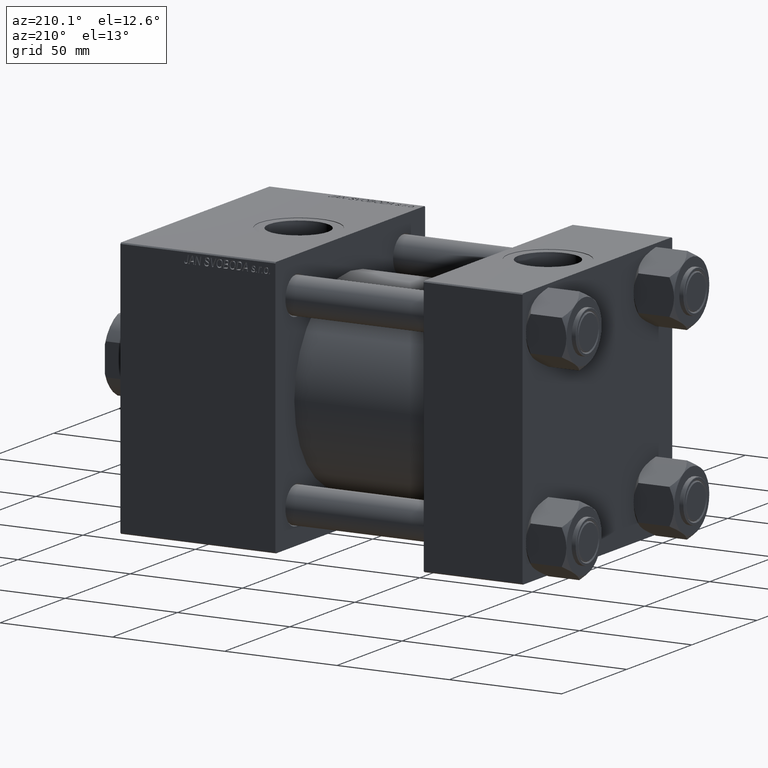
[diagram: clean part render]
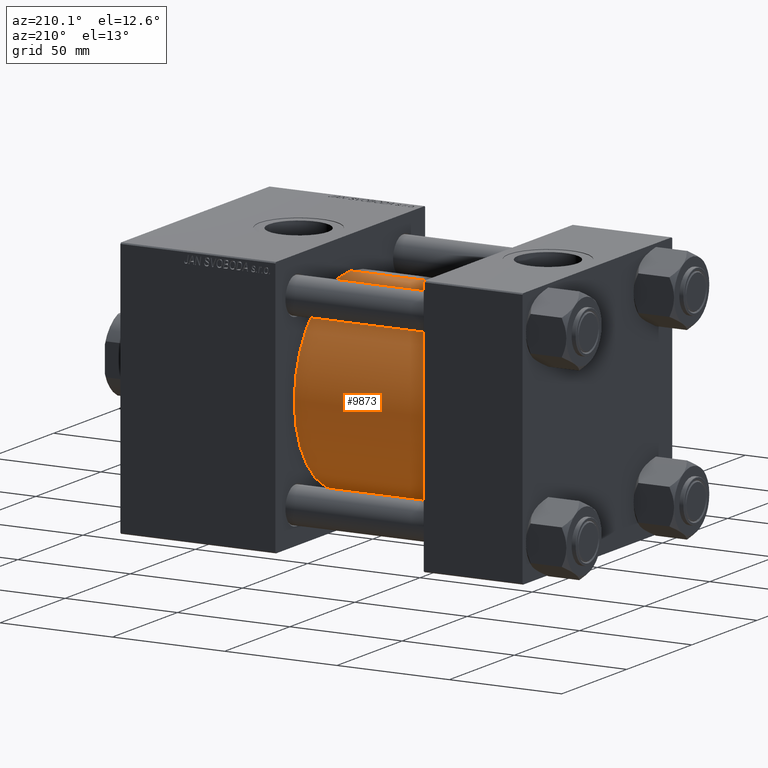
[diagram: same view with one face highlighted and labeled with its STEP entity id]
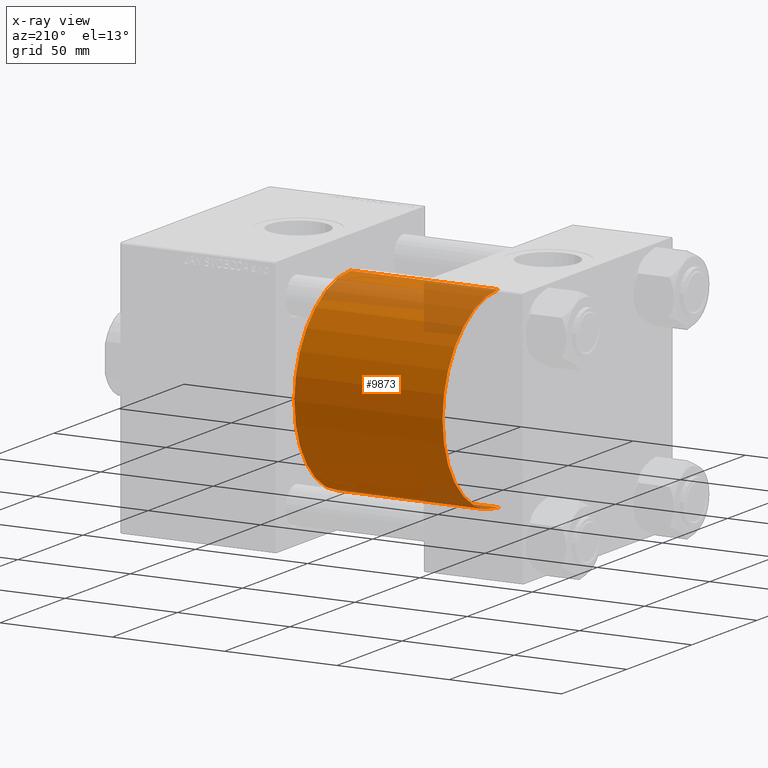
[diagram: x-ray of the same camera — body ghosted, the highlighted face saturated]
A machine part, auxiliary view. The second image highlights one B-rep face of the part: STEP entity #9873.
The next image is the same camera in x-ray: the body ghosted, the highlighted face saturated — about 17% of this face is hidden behind the body in this view.
In plain terms, the highlighted cylindrical surface (partial cylindrical patch) has radius 43 mm, axis along (-1, -0, -0).
Its self-contained STEP definition (entity closure, byte-faithful):
#852 = CIRCLE ( 'NONE', #29531, 43.00000000000000000 ) ;
#898 = CARTESIAN_POINT ( 'NONE',  ( 44.00000000000000000, -2.602085213965210642E-15, 0.000000000000000000 ) ) ;
#1645 = DIRECTION ( 'NONE',  ( 1.000000000000000000, -0.000000000000000000, 0.000000000000000000 ) ) ;
#3083 = CARTESIAN_POINT ( 'NONE',  ( 44.00000000000000000, -2.602085213965210642E-15, 43.00000000000000000 ) ) ;
#4640 = CIRCLE ( 'NONE', #38279, 43.00000000000000000 ) ;
#6741 = DIRECTION ( 'NONE',  ( -1.000000000000000000, -0.000000000000000000, -0.000000000000000000 ) ) ;
#9873 = ADVANCED_FACE ( 'NONE', ( #49126 ), #41927, .T. ) ;
#10013 = EDGE_LOOP ( 'NONE', ( #34598, #20002, #36866, #17884 ) ) ;
#11203 = EDGE_CURVE ( 'NONE', #45058, #35954, #17422, .T. ) ;
#16510 = DIRECTION ( 'NONE',  ( 0.000000000000000000, 0.000000000000000000, -1.000000000000000000 ) ) ;
#17422 = LINE ( 'NONE', #29979, #45085 ) ;
#17884 = ORIENTED_EDGE ( 'NONE', *, *, #40199, .F. ) ;
#20002 = ORIENTED_EDGE ( 'NONE', *, *, #11203, .T. ) ;
#22023 = DIRECTION ( 'NONE',  ( -1.000000000000000000, -0.000000000000000000, -0.000000000000000000 ) ) ;
#24026 = EDGE_CURVE ( 'NONE', #35954, #41432, #4640, .T. ) ;
#25307 = AXIS2_PLACEMENT_3D ( 'NONE', #46034, #26491, #25987 ) ;
#25987 = DIRECTION ( 'NONE',  ( 0.000000000000000000, 0.000000000000000000, 1.000000000000000000 ) ) ;
#26491 = DIRECTION ( 'NONE',  ( -1.000000000000000000, -0.000000000000000000, -0.000000000000000000 ) ) ;
#27880 = CARTESIAN_POINT ( 'NONE',  ( 110.0000000000000000, 2.663896022368408223E-15, -43.00000000000000000 ) ) ;
#28563 = CARTESIAN_POINT ( 'NONE',  ( 110.0000000000000000, -2.602085213965210642E-15, 0.000000000000000000 ) ) ;
#29531 = AXIS2_PLACEMENT_3D ( 'NONE', #28563, #48095, #16510 ) ;
#29979 = CARTESIAN_POINT ( 'NONE',  ( 110.0000000000000000, 2.663896022368408223E-15, -43.00000000000000000 ) ) ;
#32996 = DIRECTION ( 'NONE',  ( 0.000000000000000000, 0.000000000000000000, 1.000000000000000000 ) ) ;
#34359 = VECTOR ( 'NONE', #6741, 1000.000000000000000 ) ;
#34598 = ORIENTED_EDGE ( 'NONE', *, *, #43244, .F. ) ;
#35954 = VERTEX_POINT ( 'NONE', #41147 ) ;
#36866 = ORIENTED_EDGE ( 'NONE', *, *, #24026, .T. ) ;
#38279 = AXIS2_PLACEMENT_3D ( 'NONE', #898, #1645, #32996 ) ;
#40199 = EDGE_CURVE ( 'NONE', #47577, #41432, #42188, .T. ) ;
#41147 = CARTESIAN_POINT ( 'NONE',  ( 44.00000000000000000, 2.663896022368408223E-15, -43.00000000000000000 ) ) ;
#41432 = VERTEX_POINT ( 'NONE', #3083 ) ;
#41927 = CYLINDRICAL_SURFACE ( 'NONE', #25307, 43.00000000000000000 ) ;
#42188 = LINE ( 'NONE', #49889, #34359 ) ;
#43244 = EDGE_CURVE ( 'NONE', #45058, #47577, #852, .T. ) ;
#45058 = VERTEX_POINT ( 'NONE', #27880 ) ;
#45085 = VECTOR ( 'NONE', #22023, 1000.000000000000000 ) ;
#46034 = CARTESIAN_POINT ( 'NONE',  ( 110.0000000000000000, -2.602085213965210642E-15, 0.000000000000000000 ) ) ;
#47577 = VERTEX_POINT ( 'NONE', #48453 ) ;
#48095 = DIRECTION ( 'NONE',  ( 1.000000000000000000, 0.000000000000000000, 0.000000000000000000 ) ) ;
#48453 = CARTESIAN_POINT ( 'NONE',  ( 110.0000000000000000, -2.602085213965210642E-15, 43.00000000000000000 ) ) ;
#49126 = FACE_OUTER_BOUND ( 'NONE', #10013, .T. ) ;
#49889 = CARTESIAN_POINT ( 'NONE',  ( 110.0000000000000000, -2.602085213965210642E-15, 43.00000000000000000 ) ) ;